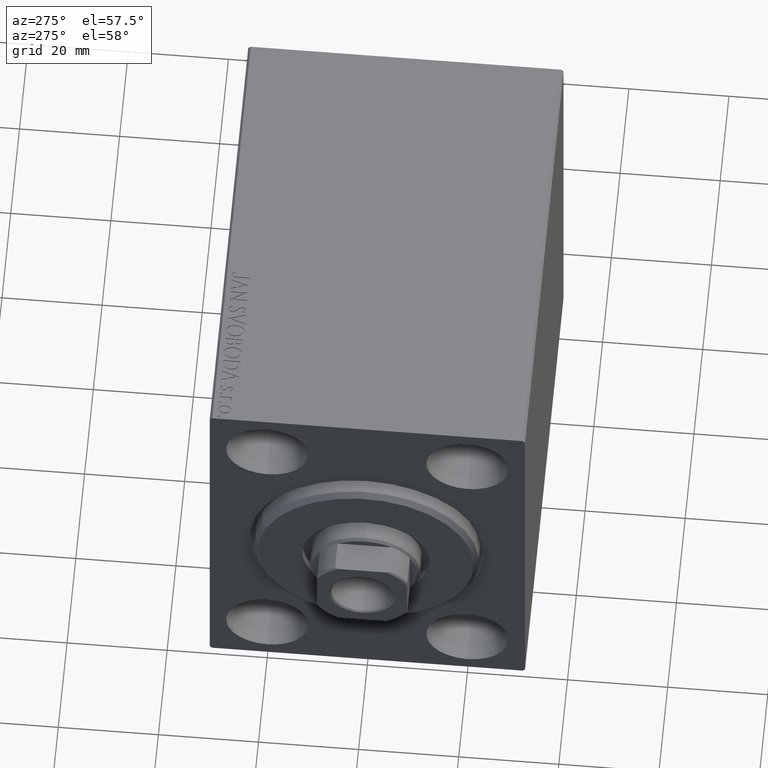
[diagram: clean part render]
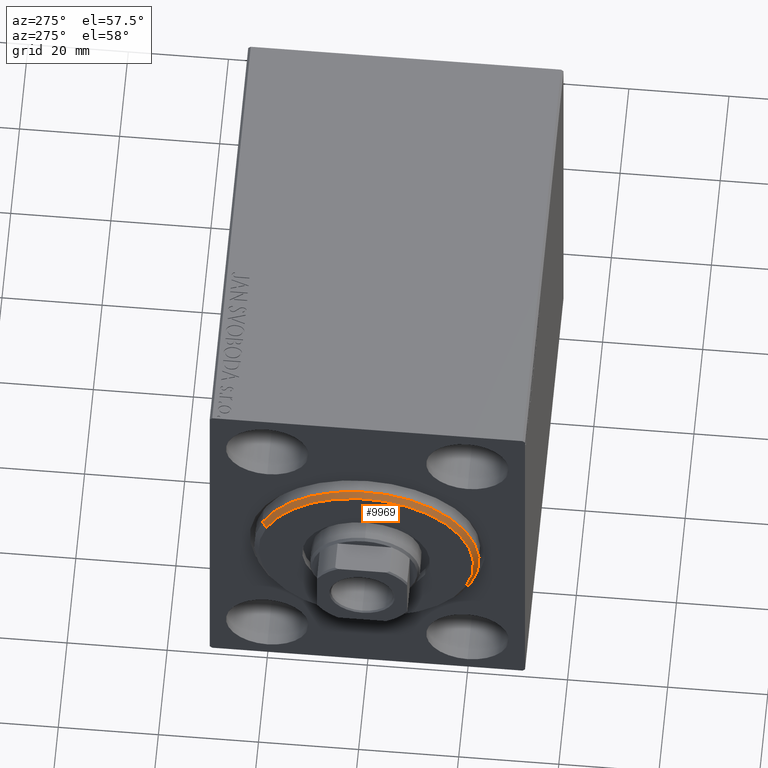
[diagram: same view with one face highlighted and labeled with its STEP entity id]
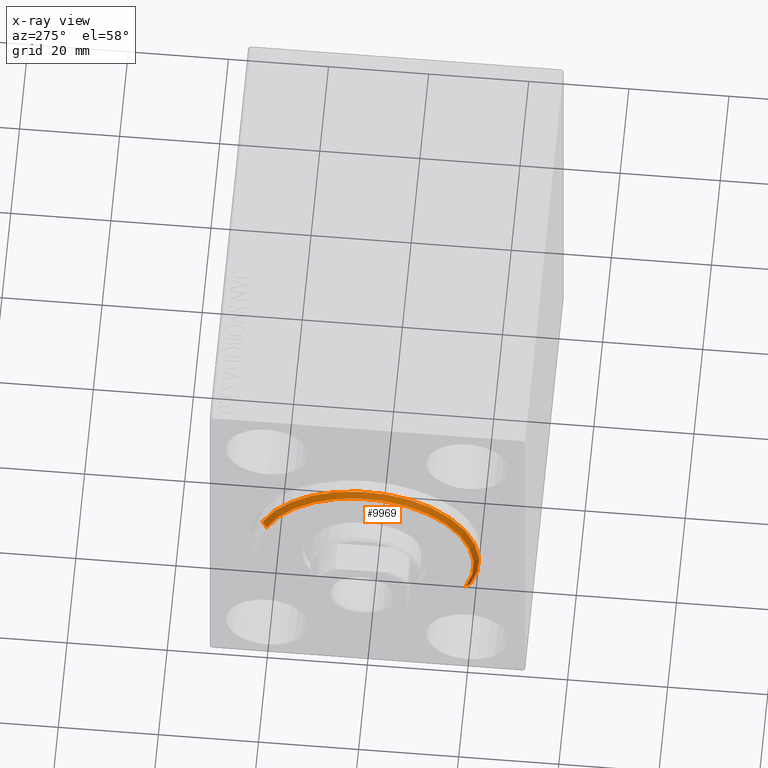
[diagram: x-ray of the same camera — body ghosted, the highlighted face saturated]
A machine part, auxiliary view. The second image highlights one B-rep face of the part: STEP entity #9969.
The next image is the same camera in x-ray: the body ghosted, the highlighted face saturated — about 0% of this face is hidden behind the body in this view.
In plain terms, the highlighted conical surface has half-angle 45 deg.
Its self-contained STEP definition (entity closure, byte-faithful):
#1027 = FACE_OUTER_BOUND ( 'NONE', #12860, .T. ) ;
#2095 = AXIS2_PLACEMENT_3D ( 'NONE', #23193, #10511, #7178 ) ;
#5978 = CARTESIAN_POINT ( 'NONE',  ( 3.000000000000000000, 0.000000000000000000, 0.000000000000000000 ) ) ;
#7178 = DIRECTION ( 'NONE',  ( 0.000000000000000000, 0.000000000000000000, -1.000000000000000000 ) ) ;
#8523 = VERTEX_POINT ( 'NONE', #30690 ) ;
#9206 = CARTESIAN_POINT ( 'NONE',  ( 3.000000000000000000, 0.000000000000000000, 21.50000000000000355 ) ) ;
#9305 = DIRECTION ( 'NONE',  ( 0.000000000000000000, 0.000000000000000000, -1.000000000000000000 ) ) ;
#9915 = VERTEX_POINT ( 'NONE', #30159 ) ;
#9969 = ADVANCED_FACE ( 'NONE', ( #1027 ), #33064, .T. ) ;
#9984 = CARTESIAN_POINT ( 'NONE',  ( 3.000000000000000000, 2.632990618166810024E-15, -21.50000000000000355 ) ) ;
#10169 = VECTOR ( 'NONE', #29856, 1000.000000000000000 ) ;
#10511 = DIRECTION ( 'NONE',  ( -1.000000000000000000, 0.000000000000000000, 0.000000000000000000 ) ) ;
#10667 = EDGE_CURVE ( 'NONE', #9915, #25216, #42337, .T. ) ;
#11246 = CARTESIAN_POINT ( 'NONE',  ( 3.000000000000000000, 0.000000000000000000, 0.000000000000000000 ) ) ;
#12118 = ORIENTED_EDGE ( 'NONE', *, *, #10667, .F. ) ;
#12860 = EDGE_LOOP ( 'NONE', ( #18559, #12118, #18196, #13042 ) ) ;
#13042 = ORIENTED_EDGE ( 'NONE', *, *, #25406, .F. ) ;
#13694 = DIRECTION ( 'NONE',  ( 0.000000000000000000, 0.000000000000000000, 1.000000000000000000 ) ) ;
#13889 = AXIS2_PLACEMENT_3D ( 'NONE', #11246, #38165, #13694 ) ;
#16858 = DIRECTION ( 'NONE',  ( -0.7071067811865487940, 8.659560562354919300E-17, -0.7071067811865463515 ) ) ;
#17273 = CARTESIAN_POINT ( 'NONE',  ( 3.000000000000000000, 2.694222958124177598E-15, -21.50000000000000355 ) ) ;
#18196 = ORIENTED_EDGE ( 'NONE', *, *, #40440, .T. ) ;
#18559 = ORIENTED_EDGE ( 'NONE', *, *, #39700, .F. ) ;
#19944 = DIRECTION ( 'NONE',  ( 1.000000000000000000, -0.000000000000000000, 0.000000000000000000 ) ) ;
#20635 = LINE ( 'NONE', #9984, #32855 ) ;
#23193 = CARTESIAN_POINT ( 'NONE',  ( 1.999999999999999112, 0.000000000000000000, 0.000000000000000000 ) ) ;
#25216 = VERTEX_POINT ( 'NONE', #17273 ) ;
#25406 = EDGE_CURVE ( 'NONE', #40557, #8523, #31184, .T. ) ;
#26744 = CARTESIAN_POINT ( 'NONE',  ( 1.999999999999999112, 2.755455298081545172E-15, -22.50000000000000355 ) ) ;
#29856 = DIRECTION ( 'NONE',  ( -0.7071067811865487940, 0.000000000000000000, 0.7071067811865463515 ) ) ;
#30159 = CARTESIAN_POINT ( 'NONE',  ( 3.000000000000000000, 0.000000000000000000, 21.50000000000000355 ) ) ;
#30690 = CARTESIAN_POINT ( 'NONE',  ( 1.999999999999999112, 0.000000000000000000, 22.50000000000000355 ) ) ;
#31184 = CIRCLE ( 'NONE', #2095, 22.50000000000000355 ) ;
#31671 = AXIS2_PLACEMENT_3D ( 'NONE', #5978, #19944, #9305 ) ;
#32545 = LINE ( 'NONE', #9206, #10169 ) ;
#32855 = VECTOR ( 'NONE', #16858, 1000.000000000000000 ) ;
#33064 = CONICAL_SURFACE ( 'NONE', #13889, 21.50000000000000355, 0.7853981633974466137 ) ;
#38165 = DIRECTION ( 'NONE',  ( -1.000000000000000000, 0.000000000000000000, 0.000000000000000000 ) ) ;
#39700 = EDGE_CURVE ( 'NONE', #25216, #40557, #20635, .T. ) ;
#40440 = EDGE_CURVE ( 'NONE', #9915, #8523, #32545, .T. ) ;
#40557 = VERTEX_POINT ( 'NONE', #26744 ) ;
#42337 = CIRCLE ( 'NONE', #31671, 21.50000000000000355 ) ;